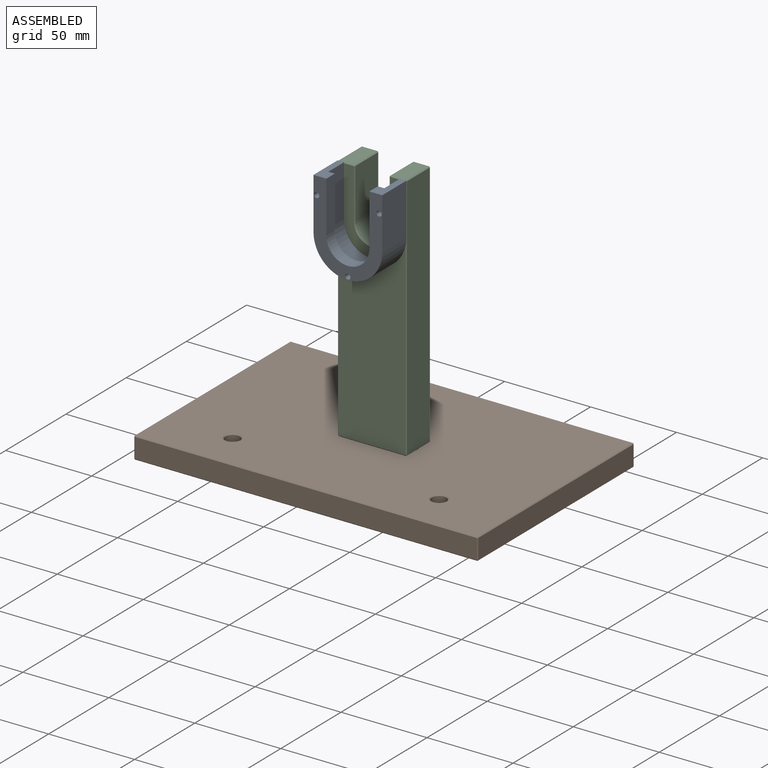
[diagram: assembled view]
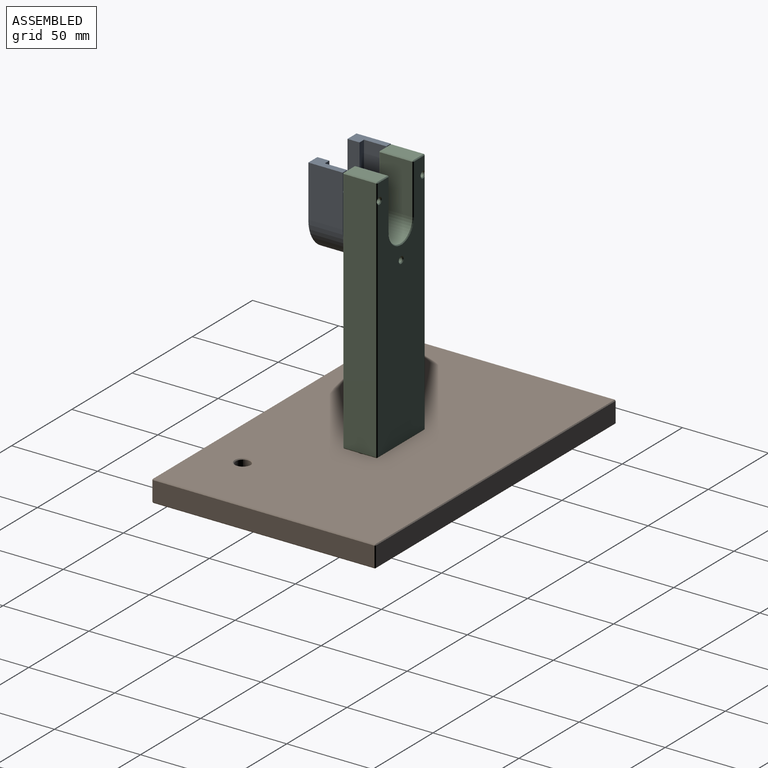
[diagram: assembled view, second angle]
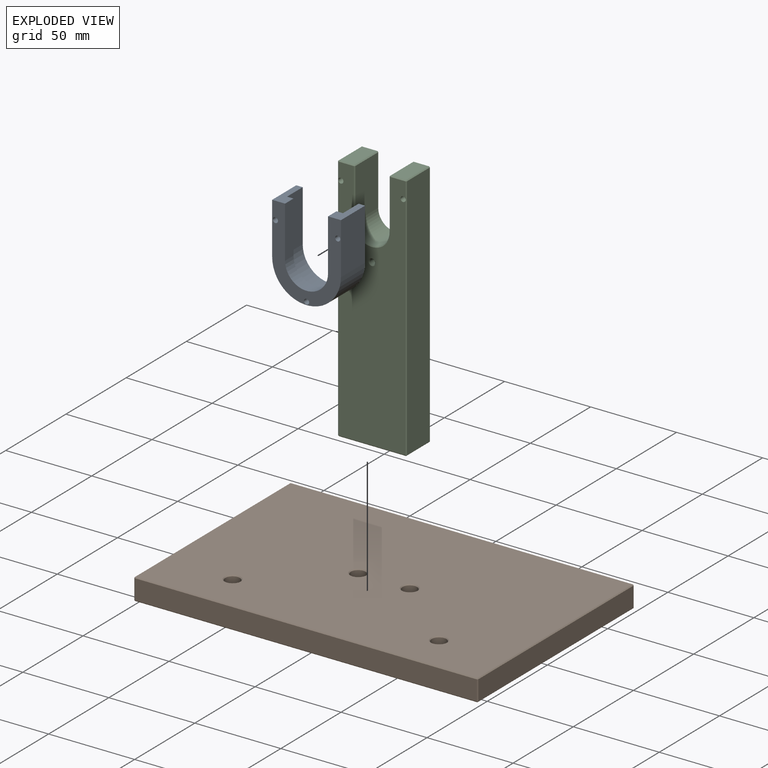
[diagram: exploded view]
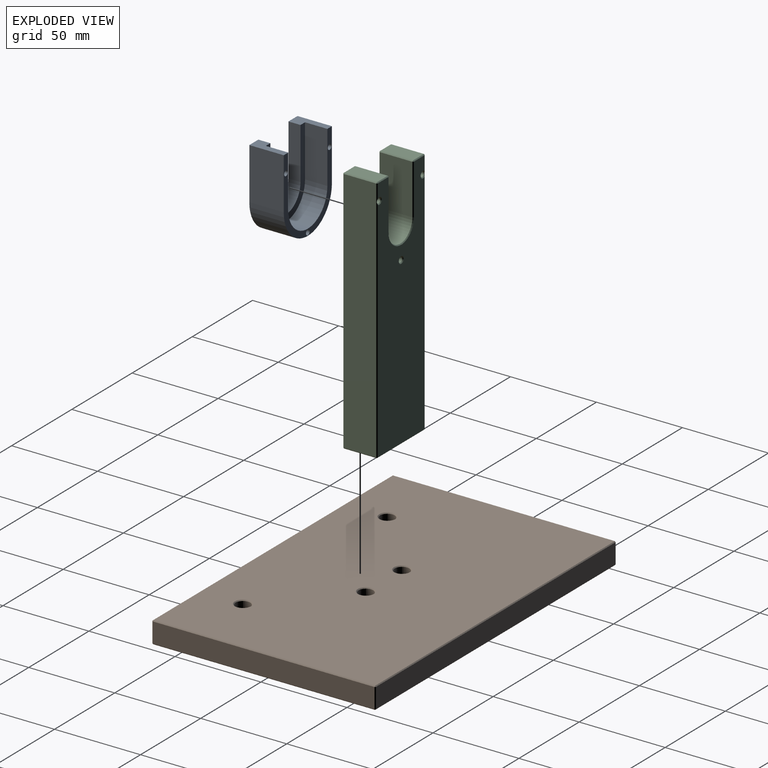
[diagram: exploded view, second angle]
ASSEMBLY  parts=3 mates=2
PART A: 17 faces, bbox 40x20x50 mm
  f0: plane 20x7.5mm, normal (0,0,1), area 101.2mm2, adj f3,f4,f8,f9,f12,f13
  f1: plane 30x7mm, normal (-1,0,0), area 210mm2, adj f2,f7,f8,f13
  f2: cylinder r=12.5mm len=25mm, axis (0,1,0), area 274.9mm2, adj f1,f3,f8,f13
  f3: plane 30x7mm, normal (1,0,0), area 210mm2, adj f0,f2,f8,f13
  f4: plane 30x20mm, normal (-1,0,0), area 600mm2, adj f0,f5,f8,f9
  f5: cylinder r=20mm len=40mm, axis (0,1,0), area 1256.6mm2, adj f4,f6,f8,f9
  f6: plane 30x20mm, normal (1,0,0), area 600mm2, adj f5,f7,f8,f9
  f7: plane 20x7.5mm, normal (0,0,1), area 101.2mm2, adj f1,f6,f8,f9,f10,f13
  f8: plane 50x40mm, normal (0,-1,0), area 811.7mm2, adj f0,f1,f2,f3,f4,f5,f6,f7
  f9: plane 50x40mm, normal (0,1,0), area 417.3mm2, adj f0,f4,f5,f6,f7,f10,f11,f12
  f10: plane 30x13mm, normal (-1,0,0), area 390mm2, adj f7,f9,f11,f13
  f11: cylinder r=16.25mm len=32.5mm, axis (0,1,0), area 663.7mm2, adj f9,f10,f12,f13
  f12: plane 30x13mm, normal (1,0,0), area 390mm2, adj f0,f9,f11,f13
  f13: plane 46.25x32.5mm, normal (0,1,0), area 394.4mm2, adj f0,f1,f2,f3,f7,f10,f11,f12
  f14: cylinder r=1.5mm len=20mm, axis (0,1,0), area 188.5mm2, adj f8,f9
  f15: cylinder r=1.5mm len=20mm, axis (0,1,0), area 188.5mm2, adj f8,f9
  f16: cylinder r=1.5mm len=20mm, axis (0,1,0), area 188.5mm2, adj f8,f9
PART B: 44 faces, bbox 200x130x12.7 mm
  f0: plane 129x11.7mm, normal (1,0,0), area 1509.3mm2, adj f11,f12,f21,f22
  f1: plane 199x11.7mm, normal (0,1,0), area 2328.3mm2, adj f8,f12,f13,f14
  f2: plane 129x11.7mm, normal (-1,0,0), area 1509.3mm2, adj f14,f15,f23,f24
  f3: plane 199x11.7mm, normal (0,-1,0), area 2328.3mm2, adj f16,f21,f24,f27
  f4: plane 199x129mm, normal (0,0,1), area 25387.5mm2, adj f8,f11,f15,f16,f30,f31,f38,f39
  f5: plane 199x129mm, normal (0,0,-1), area 25263.8mm2, adj f13,f22,f23,f27,f28,f29,f41,f43
  f6: cylinder r=4.25mm len=11.7mm, axis (0,0,1), area 312.4mm2, adj f29,f31
  f7: cylinder r=4.25mm len=11.7mm, axis (0,0,1), area 312.4mm2, adj f28,f30
  f8: plane 199x0.5mm, normal (0,0.71,0.71), area 140.7mm2, adj f1,f4,f9,f10
  f9: plane 0.5x0.5mm, normal (0.58,0.58,0.58), area 0.2mm2, adj f8,f11,f12
  f10: plane 0.5x0.5mm, normal (-0.58,0.58,0.58), area 0.2mm2, adj f8,f14,f15
  f11: plane 129x0.5mm, normal (0.71,0,0.71), area 91.2mm2, adj f0,f4,f9,f17
  f12: plane 11.7x0.5mm, normal (0.71,0.71,0), area 8.3mm2, adj f0,f1,f9,f18
  f13: plane 199x0.5mm, normal (0,0.71,-0.71), area 140.7mm2, adj f1,f5,f18,f19
  f14: plane 11.7x0.5mm, normal (-0.71,0.71,0), area 8.3mm2, adj f1,f2,f10,f19
  f15: plane 129x0.5mm, normal (-0.71,0,0.71), area 91.2mm2, adj f2,f4,f10,f20
  f16: plane 199x0.5mm, normal (0,-0.71,0.71), area 140.7mm2, adj f3,f4,f17,f20
  f17: plane 0.5x0.5mm, normal (0.58,-0.58,0.58), area 0.2mm2, adj f11,f16,f21
  f18: plane 0.5x0.5mm, normal (0.58,0.58,-0.58), area 0.2mm2, adj f12,f13,f22
  f19: plane 0.5x0.5mm, normal (-0.58,0.58,-0.58), area 0.2mm2, adj f13,f14,f23
  f20: plane 0.5x0.5mm, normal (-0.58,-0.58,0.58), area 0.2mm2, adj f15,f16,f24
  f21: plane 11.7x0.5mm, normal (0.71,-0.71,0), area 8.3mm2, adj f0,f3,f17,f25
  f22: plane 129x0.5mm, normal (0.71,0,-0.71), area 91.2mm2, adj f0,f5,f18,f25
  f23: plane 129x0.5mm, normal (-0.71,0,-0.71), area 91.2mm2, adj f2,f5,f19,f26
  f24: plane 11.7x0.5mm, normal (-0.71,-0.71,0), area 8.3mm2, adj f2,f3,f20,f26
  f25: plane 0.5x0.5mm, normal (0.58,-0.58,-0.58), area 0.2mm2, adj f21,f22,f27
  f26: plane 0.5x0.5mm, normal (-0.58,-0.58,-0.58), area 0.2mm2, adj f23,f24,f27
  f27: plane 199x0.5mm, normal (0,-0.71,-0.71), area 140.7mm2, adj f3,f5,f25,f26
  f28: cone r=4.25mm half-angle=45deg, axis (0,0,-1), area 20mm2, adj f5,f7
  f29: cone r=4.25mm half-angle=45deg, axis (0,0,-1), area 20mm2, adj f5,f6
  f30: cone r=4.25mm half-angle=45deg, axis (0,0,1), area 20mm2, adj f4,f7
  f31: cone r=4.25mm half-angle=45deg, axis (0,0,1), area 20mm2, adj f4,f6
  f32: cylinder r=4.25mm len=8.5mm, axis (0,0,-1), area 178.9mm2, adj f38,f42
  f33: plane 12x12mm, normal (0,0,-1), area 42.2mm2, adj f34,f42
  f34: cylinder r=6mm len=12mm, axis (0,0,-1), area 169.6mm2, adj f33,f43
  f35: cylinder r=4.25mm len=8.5mm, axis (0,0,-1), area 178.9mm2, adj f39,f40
  f36: plane 12x12mm, normal (0,0,-1), area 42.2mm2, adj f37,f40
  f37: cylinder r=6mm len=12mm, axis (0,0,-1), area 169.6mm2, adj f36,f41
  f38: cone r=4.75mm half-angle=45deg, axis (0,0,1), area 20mm2, adj f4,f32
  f39: cone r=4.75mm half-angle=45deg, axis (0,0,1), area 20mm2, adj f4,f35
  f40: cone r=4.25mm half-angle=45deg, axis (0,0,-1), area 20mm2, adj f35,f36
  f41: cone r=6mm half-angle=45deg, axis (0,0,-1), area 27.8mm2, adj f5,f37
  f42: cone r=4.25mm half-angle=45deg, axis (0,0,-1), area 20mm2, adj f32,f33
  f43: cone r=6mm half-angle=45deg, axis (0,0,-1), area 27.8mm2, adj f5,f34
PART C: 57 faces, bbox 40.3x20x145 mm
  f0: plane 19x9mm, normal (0,0,1), area 171mm2, adj f28,f33,f37,f38
  f1: plane 144x19mm, normal (1,0,0), area 2736mm2, adj f25,f34,f35,f36
  f2: plane 19x9mm, normal (0,0,1), area 171mm2, adj f17,f24,f25,f26
  f3: plane 144x19mm, normal (-1,0,0), area 2736mm2, adj f38,f43,f46,f49
  f4: plane 39x19mm, normal (0,0,-1), area 647.9mm2, adj f14,f15,f35,f44,f45,f49
  f5: plane 144x39mm, normal (0,-1,0), area 4803.1mm2, adj f16,f19,f23,f24,f33,f34,f43,f44
  f6: plane 144x39mm, normal (0,1,0), area 4794.4mm2, adj f18,f22,f26,f27,f36,f37,f45,f46
  f7: plane 29.2x19mm, normal (1,0,0), area 554.8mm2, adj f8,f23,f27,f28
  f8: cylinder r=10mm len=20mm, axis (0,-1,0), area 596.9mm2, adj f7,f9,f19,f22
  f9: plane 29.2x19mm, normal (-1,0,0), area 554.8mm2, adj f8,f16,f17,f18
  f10: cone r=0mm half-angle=59deg, axis (0,0,-1), area 41.1mm2, adj f11
  f11: cylinder r=3.35mm len=19.5mm, axis (0,0,-1), area 410.4mm2, adj f10,f15
  f12: cone r=0mm half-angle=59deg, axis (0,0,-1), area 41.1mm2, adj f13
  f13: cylinder r=3.35mm len=19.5mm, axis (0,0,-1), area 410.4mm2, adj f12,f14
  f14: cone r=3.35mm half-angle=45deg, axis (0,0,-1), area 16mm2, adj f4,f13
  f15: cone r=3.35mm half-angle=45deg, axis (0,0,-1), area 16mm2, adj f4,f11
  f16: plane 29.2x0.5mm, normal (-0.71,-0.71,0), area 20.6mm2, adj f5,f9,f19,f20
  f17: plane 19x0.5mm, normal (-0.71,0,0.71), area 13.4mm2, adj f2,f9,f20,f21
  f18: plane 29.2x0.5mm, normal (-0.71,0.71,0), area 20.6mm2, adj f6,f9,f21,f22
  f19: cone r=10mm half-angle=45deg, axis (0,-1,0), area 22.8mm2, adj f5,f8,f16,f23
  f20: plane 0.5x0.5mm, normal (-0.58,-0.58,0.58), area 0.2mm2, adj f16,f17,f24
  f21: plane 0.5x0.5mm, normal (-0.58,0.58,0.58), area 0.2mm2, adj f17,f18,f26
  f22: cone r=10.5mm half-angle=45deg, axis (0,1,0), area 22.8mm2, adj f6,f8,f18,f27
  f23: plane 29.2x0.5mm, normal (0.71,-0.71,0), area 20.6mm2, adj f5,f7,f19,f29
  f24: plane 9x0.5mm, normal (0,-0.71,0.71), area 6.4mm2, adj f2,f5,f20,f30
  f25: plane 19x0.5mm, normal (0.71,0,0.71), area 13.4mm2, adj f1,f2,f30,f31
  f26: plane 9x0.5mm, normal (0,0.71,0.71), area 6.4mm2, adj f2,f6,f21,f31
  f27: plane 29.2x0.5mm, normal (0.71,0.71,0), area 20.6mm2, adj f6,f7,f22,f32
  f28: plane 19x0.5mm, normal (0.71,0,0.71), area 13.4mm2, adj f0,f7,f29,f32
  f29: plane 0.5x0.5mm, normal (0.58,-0.58,0.58), area 0.2mm2, adj f23,f28,f33
  f30: plane 0.5x0.5mm, normal (0.58,-0.58,0.58), area 0.2mm2, adj f24,f25,f34
  f31: plane 0.5x0.5mm, normal (0.58,0.58,0.58), area 0.2mm2, adj f25,f26,f36
  f32: plane 0.5x0.5mm, normal (0.58,0.58,0.58), area 0.2mm2, adj f27,f28,f37
  f33: plane 9x0.5mm, normal (0,-0.71,0.71), area 6.4mm2, adj f0,f5,f29,f39
  f34: plane 144x0.5mm, normal (0.71,-0.71,0), area 101.7mm2, adj f1,f5,f30,f40,f50
  f35: plane 19x0.5mm, normal (0.71,0,-0.71), area 13.4mm2, adj f1,f4,f40,f41
  f36: plane 144x0.5mm, normal (0.71,0.71,0), area 101mm2, adj f1,f6,f31,f41,f56
  f37: plane 9x0.5mm, normal (0,0.71,0.71), area 6.4mm2, adj f0,f6,f32,f42
  f38: plane 19x0.5mm, normal (-0.71,0,0.71), area 13.4mm2, adj f0,f3,f39,f42
  f39: plane 0.5x0.5mm, normal (-0.58,-0.58,0.58), area 0.2mm2, adj f33,f38,f43
  f40: plane 0.5x0.5mm, normal (0.58,-0.58,-0.58), area 0.2mm2, adj f34,f35,f44
  f41: plane 0.5x0.5mm, normal (0.58,0.58,-0.58), area 0.2mm2, adj f35,f36,f45
  f42: plane 0.5x0.5mm, normal (-0.58,0.58,0.58), area 0.2mm2, adj f37,f38,f46
  f43: plane 144x0.5mm, normal (-0.71,-0.71,0), area 101.7mm2, adj f3,f5,f39,f47,f51
  f44: plane 39x0.5mm, normal (0,-0.71,-0.71), area 27.6mm2, adj f4,f5,f40,f47
  f45: plane 39x0.5mm, normal (0,0.71,-0.71), area 27.6mm2, adj f4,f6,f41,f48
  f46: plane 144x0.5mm, normal (-0.71,0.71,0), area 101mm2, adj f3,f6,f42,f48,f55
  f47: plane 0.5x0.5mm, normal (-0.58,-0.58,-0.58), area 0.2mm2, adj f43,f44,f49
  f48: plane 0.5x0.5mm, normal (-0.58,0.58,-0.58), area 0.2mm2, adj f45,f46,f49
  f49: plane 19x0.5mm, normal (-0.71,0,-0.71), area 13.4mm2, adj f3,f4,f47,f48
  f50: cylinder r=1.5mm len=19.5mm, axis (0,1,0), area 183.7mm2, adj f5,f34,f56
  f51: cylinder r=1.5mm len=19.5mm, axis (0,1,0), area 183.7mm2, adj f5,f43,f55
  f52: cylinder r=1.5mm len=19mm, axis (0,1,0), area 179.1mm2, adj f53,f54
  f53: cone r=1.5mm half-angle=45deg, axis (0,1,0), area 7.8mm2, adj f6,f52
  f54: cone r=2mm half-angle=45deg, axis (0,-1,0), area 7.8mm2, adj f5,f52
  f55: cone r=1.5mm half-angle=45deg, axis (0,1,0), area 6.9mm2, adj f6,f46,f51
  f56: cone r=1.5mm half-angle=45deg, axis (0,1,0), area 6.9mm2, adj f6,f36,f50
PLACE A rot(axis=(0,0,1),0deg) t=(2.61,-6.62,142.77)mm
PLACE B t=(2.61,3.38,15.07)mm
PLACE C t=(2.61,13.38,100.27)mm
MATE pin_slot A.f16 <-> C.f52  axis (0,1,0) through (2.61,-6.62,124.57)mm
MATE pin_slot B.f35 <-> C.f12  axis (0,0,1) through (17.61,3.38,27.77)mm
